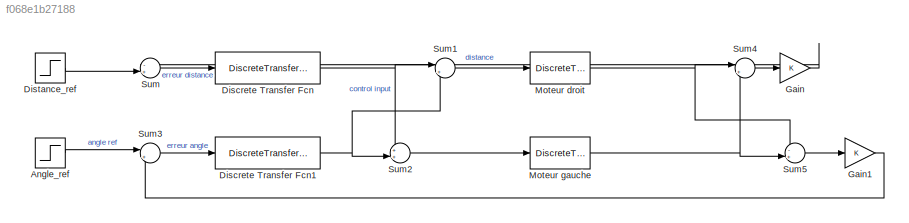
MODEL slx_f068e1b27188
KIND model
CONFIG AbsTol = auto
CONFIG EnableMultiTasking = off
CONFIG FixedStep = auto
CONFIG MaxStep = auto
CONFIG MinStep = auto
CONFIG RelTol = 1e-3
CONFIG SampleTimeConstraint = Unconstrained
CONFIG Solver = VariableStepAuto
CONFIG SolverName = VariableStepAuto
CONFIG StartTime = 0.0
CONFIG StopTime = 200
BLOCK [Step] Angle_ref
  After = 600
  SampleTime = 0
  Time = 2
BLOCK [DiscreteTransferFcn] Discrete Transfer Fcn
  Denominator = Coeffdd
  InputPortMap = u0
  Numerator = Coeffnd
  Ports = [1, 1]
  SampleTime = Tech
BLOCK [DiscreteTransferFcn] Discrete Transfer Fcn1
  Denominator = Coeffdd
  InputPortMap = u0
  Numerator = Coeffnd
  Ports = [1, 1]
  SampleTime = Tech
BLOCK [Step] Distance_ref
  After = 5027
  SampleTime = 0
  Time = 6
BLOCK [Gain] Gain
  OutDataTypeStr = Inherit: Inherit via internal rule
  ParamDataTypeStr = Inherit: Inherit via internal rule
  SaturateOnIntegerOverflow = off
BLOCK [Gain] Gain1
  OutDataTypeStr = Inherit: Inherit via internal rule
  ParamDataTypeStr = Inherit: Inherit via internal rule
  SaturateOnIntegerOverflow = off
BLOCK [DiscreteTransferFcn] Moteur droit
  Denominator = CoeffKdd
  InputPortMap = u0
  Numerator = CoeffKdn
  Ports = [1, 1]
  SampleTime = Tech
BLOCK [DiscreteTransferFcn] Moteur gauche
  Denominator = CoeffKdd
  InputPortMap = u0
  Numerator = CoeffKdn
  Ports = [1, 1]
  SampleTime = Tech
BLOCK [Sum] Sum
  IconShape = round
  InputSameDT = off
  Inputs = -+|
  OutDataTypeStr = Inherit: Inherit via internal rule
  Ports = [2, 1]
  SaturateOnIntegerOverflow = off
BLOCK [Sum] Sum1
  IconShape = round
  InputSameDT = off
  Inputs = |+-
  OutDataTypeStr = Inherit: Inherit via internal rule
  Ports = [2, 1]
  SaturateOnIntegerOverflow = off
BLOCK [Sum] Sum2
  IconShape = round
  InputSameDT = off
  Inputs = ++|
  OutDataTypeStr = Inherit: Inherit via internal rule
  Ports = [2, 1]
  SaturateOnIntegerOverflow = off
BLOCK [Sum] Sum3
  IconShape = round
  InputSameDT = off
  Inputs = |+-
  OutDataTypeStr = Inherit: Inherit via internal rule
  Ports = [2, 1]
  SaturateOnIntegerOverflow = off
BLOCK [Sum] Sum4
  IconShape = round
  InputSameDT = off
  Inputs = |++
  OutDataTypeStr = Inherit: Inherit via internal rule
  Ports = [2, 1]
  SaturateOnIntegerOverflow = off
BLOCK [Sum] Sum5
  IconShape = round
  InputSameDT = off
  Inputs = -+|
  OutDataTypeStr = Inherit: Inherit via internal rule
  Ports = [2, 1]
  SaturateOnIntegerOverflow = off
LINE Angle_ref:1 -> Sum3:1
NET Discrete Transfer Fcn1:1 -> Sum1:2, Sum2:2
NET Discrete Transfer Fcn:1 -> Sum1:1, Sum2:1
LINE Distance_ref:1 -> Sum:2
LINE Gain1:1 -> Sum3:2
LINE Gain:1 -> Sum:1
NET Moteur droit:1 -> Sum4:1, Sum5:1
NET Moteur gauche:1 -> Sum4:2, Sum5:2
LINE Sum1:1 -> Moteur droit:1
LINE Sum2:1 -> Moteur gauche:1
LINE Sum3:1 -> Discrete Transfer Fcn1:1
LINE Sum4:1 -> Gain:1
LINE Sum5:1 -> Gain1:1
LINE Sum:1 -> Discrete Transfer Fcn:1
note: NET lines group one-source signal fan-out (src -> all destinations, sorted); 1:1 wires keep LINE
